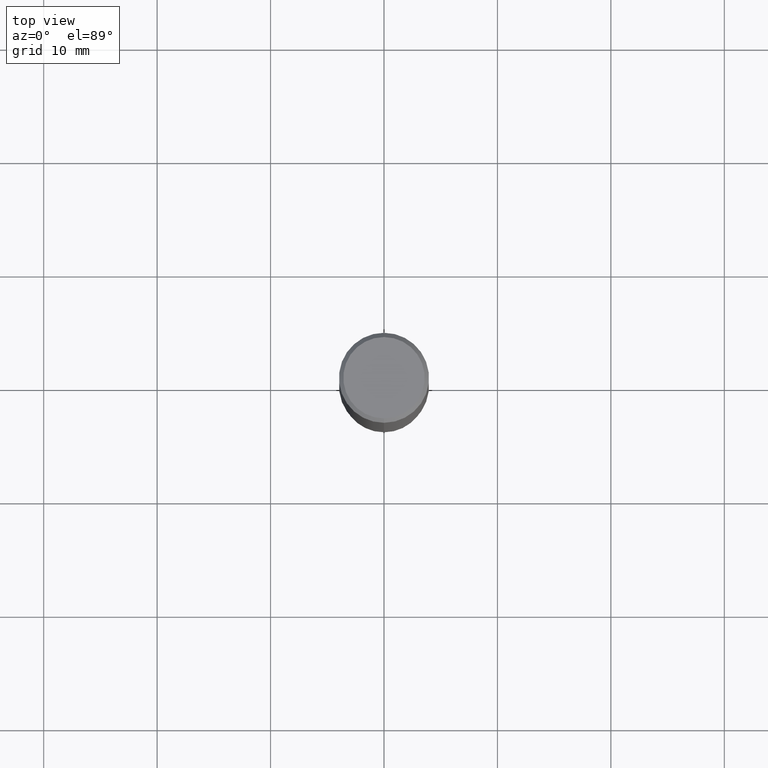
[diagram: clean part render]
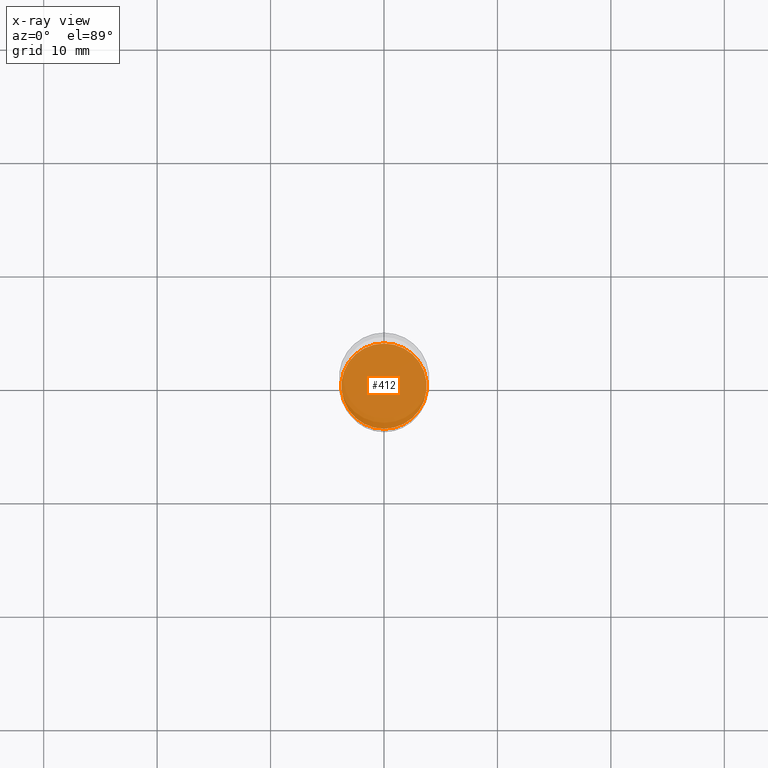
[diagram: x-ray — body ghosted, one internal face saturated and labeled with its STEP entity id]
A machine part, top view, then the same camera in x-ray: the body is ghosted and one INTERNAL B-rep face — a face not visible from any outside direction — is saturated and labeled: STEP entity #412.
In plain terms, the highlighted planar face has unit normal (-0, 0, 1).
Its self-contained STEP definition (entity closure, byte-faithful):
#8 = EDGE_CURVE ( 'NONE', #61, #349, #104, .T. ) ;
#25 = CARTESIAN_POINT ( 'NONE',  ( 4.127987236883210473E-29, -5.893569100519235546E-15, -1.688000000000000167 ) ) ;
#37 = CARTESIAN_POINT ( 'NONE',  ( 4.127987236883210473E-29, -5.893569100519235546E-15, -1.688000000000000167 ) ) ;
#42 = FACE_OUTER_BOUND ( 'NONE', #211, .T. ) ;
#61 = VERTEX_POINT ( 'NONE', #366 ) ;
#104 = CIRCLE ( 'NONE', #218, 0.1479499999999999982 ) ;
#117 = PLANE ( 'NONE',  #299 ) ;
#125 = CARTESIAN_POINT ( 'NONE',  ( 4.127987236883210473E-29, -5.893569100519235546E-15, -1.688000000000000167 ) ) ;
#147 = CARTESIAN_POINT ( 'NONE',  ( -1.033129328163641670E-15, -0.1479500000000058824, -1.687999999999999501 ) ) ;
#189 = ORIENTED_EDGE ( 'NONE', *, *, #257, .F. ) ;
#211 = EDGE_LOOP ( 'NONE', ( #189, #510 ) ) ;
#218 = AXIS2_PLACEMENT_3D ( 'NONE', #37, #512, #230 ) ;
#230 = DIRECTION ( 'NONE',  ( -6.982962677686265922E-15, -1.000000000000000000, 3.692934090793191643E-15 ) ) ;
#257 = EDGE_CURVE ( 'NONE', #349, #61, #482, .T. ) ;
#299 = AXIS2_PLACEMENT_3D ( 'NONE', #125, #511, #387 ) ;
#349 = VERTEX_POINT ( 'NONE', #147 ) ;
#366 = CARTESIAN_POINT ( 'NONE',  ( 1.053024334396509288E-15, 0.1479499999999940862, -1.688000000000000611 ) ) ;
#387 = DIRECTION ( 'NONE',  ( -6.982962677686265922E-15, -1.000000000000000000, 3.491450888933196382E-15 ) ) ;
#412 = ADVANCED_FACE ( 'NONE', ( #42 ), #117, .F. ) ;
#416 = DIRECTION ( 'NONE',  ( -2.445490069243608012E-29, 3.491450888933196382E-15, 1.000000000000000000 ) ) ;
#455 = DIRECTION ( 'NONE',  ( -6.982962677686265922E-15, -1.000000000000000000, 3.692934090793191643E-15 ) ) ;
#468 = AXIS2_PLACEMENT_3D ( 'NONE', #25, #416, #455 ) ;
#482 = CIRCLE ( 'NONE', #468, 0.1479499999999999982 ) ;
#510 = ORIENTED_EDGE ( 'NONE', *, *, #8, .F. ) ;
#511 = DIRECTION ( 'NONE',  ( -2.445490069243607732E-29, 3.491450888933196382E-15, 1.000000000000000000 ) ) ;
#512 = DIRECTION ( 'NONE',  ( -2.445490069243608012E-29, 3.491450888933196382E-15, 1.000000000000000000 ) ) ;